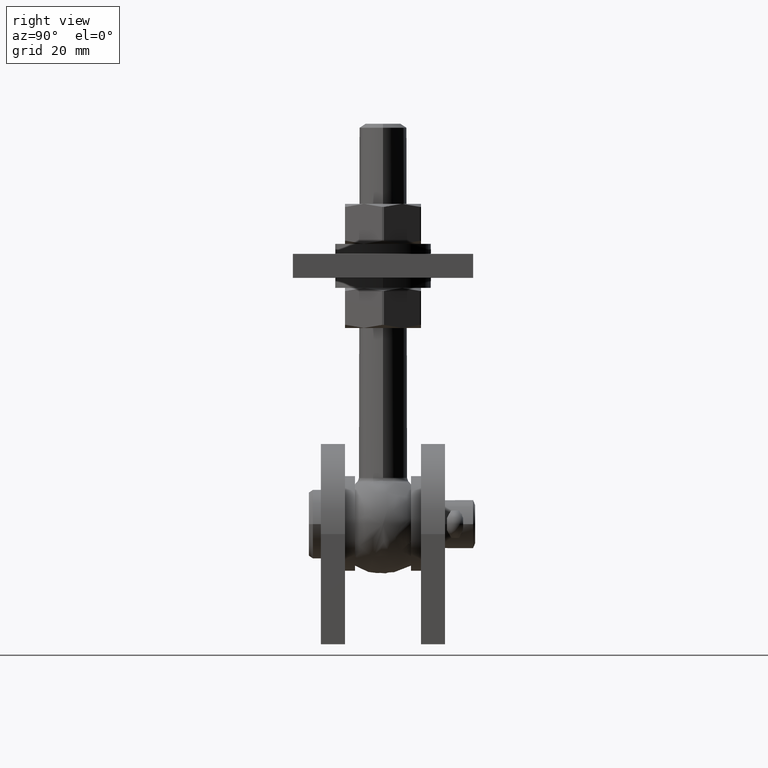
[diagram: clean part render]
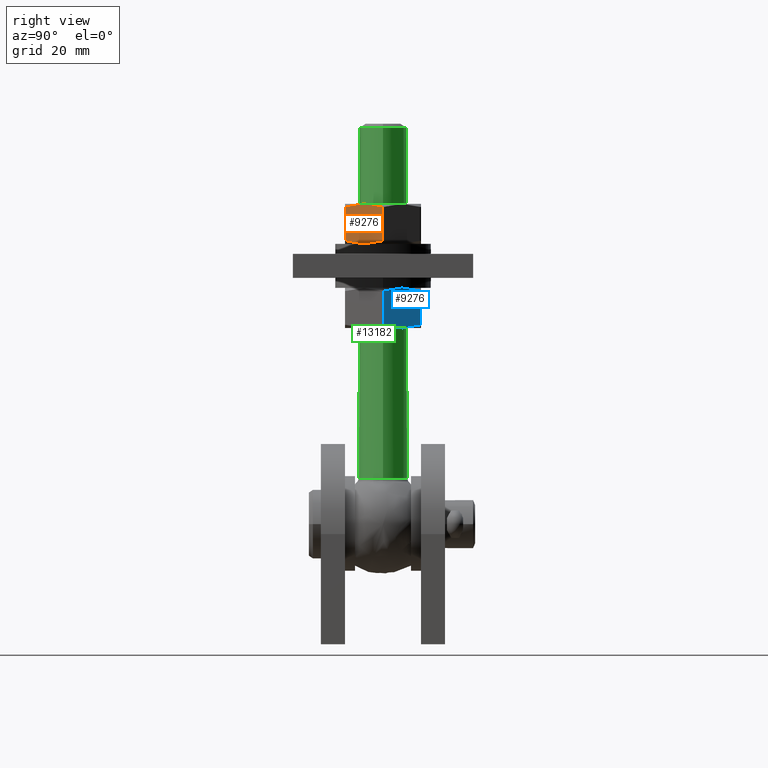
[diagram: same view with three faces highlighted in distinct colors, each labeled with its STEP entity id]
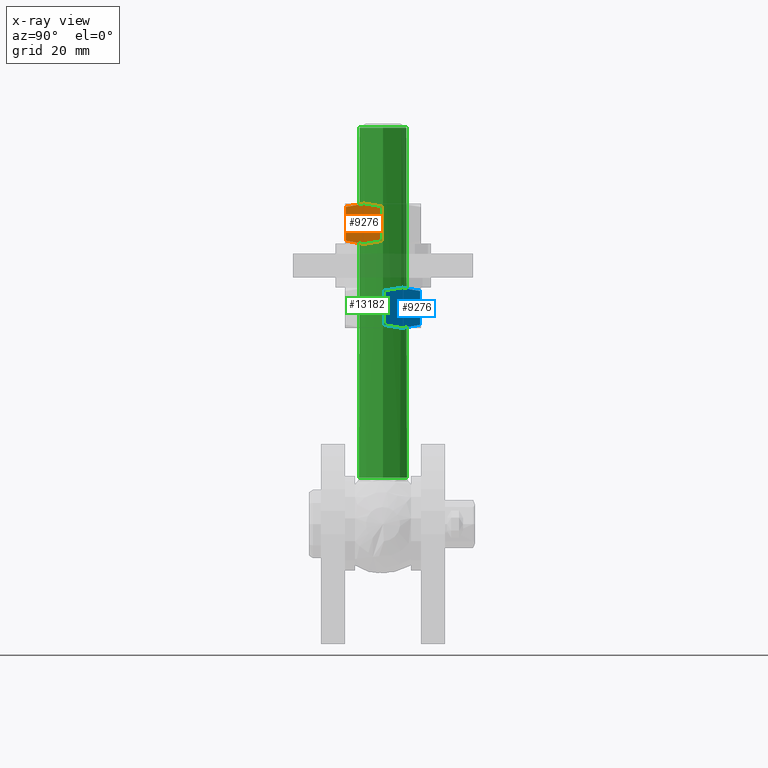
[diagram: x-ray of the same camera — body ghosted, the three highlighted faces saturated]
A machine part, right view with three faces highlighted in distinct colors.
The next image is the same camera in x-ray (body ghosted, the three faces saturated) — at least one of them is partly hidden behind the body in this view.
Their STEP definitions:

[orange] entity #9276 — the highlighted planar face has unit normal (-0.866, 0.5, 0).
#171 = LINE ( 'NONE', #13442, #1032 ) ;
#275 = CARTESIAN_POINT ( 'NONE',  ( 6.481161992788949888, 4.661040693212938457, 7.774298136405194626 ) ) ;
#363 = VERTEX_POINT ( 'NONE', #1885 ) ;
#726 = CARTESIAN_POINT ( 'NONE',  ( 7.785049015618858093, -5.000000000000003553, 5.515899565534070348 ) ) ;
#871 = CARTESIAN_POINT ( 'NONE',  ( 8.447481077618254730, -5.000000000000003553, 4.368533577588496364 ) ) ;
#1032 = VECTOR ( 'NONE', #14906, 1000.000000000000000 ) ;
#1586 = CARTESIAN_POINT ( 'NONE',  ( 9.106430400612977039, 4.927662757294314133, 3.227199870548520977 ) ) ;
#1601 = CARTESIAN_POINT ( 'NONE',  ( 7.785726958241930618, 4.982053147081705546, 5.514725334466293205 ) ) ;
#1695 = CARTESIAN_POINT ( 'NONE',  ( 10.40005022359210329, 4.468805358379075443, 0.9865846114704180936 ) ) ;
#1827 = ORIENTED_EDGE ( 'NONE', *, *, #15463, .T. ) ;
#1885 = CARTESIAN_POINT ( 'NONE',  ( 5.629165124598359604, -4.233161112797494852, 9.250000000000859757 ) ) ;
#2905 = CARTESIAN_POINT ( 'NONE',  ( 8.227241335952166779, 5.000000000000000000, 4.749999999999996447 ) ) ;
#3017 = CARTESIAN_POINT ( 'NONE',  ( 10.82531754730598195, 4.233161112797495740, 0.2499999999991363853 ) ) ;
#3512 = CARTESIAN_POINT ( 'NONE',  ( 9.324286606578485959, -4.860768812073038347, 2.849861853072073181 ) ) ;
#3587 = ORIENTED_EDGE ( 'NONE', *, *, #5479, .T. ) ;
#4222 = B_SPLINE_CURVE_WITH_KNOTS ( 'NONE', 3,
 ( #3017, #1695, #12416, #1586, #13758, #2905 ),
 .UNSPECIFIED., .F., .F.,
 ( 4, 2, 4 ),
 ( 0.0002975922718325320761, 0.002923788827799092375, 0.005549985383765653271 ),
 .UNSPECIFIED. ) ;
#4432 = CARTESIAN_POINT ( 'NONE',  ( 10.82531754730598195, 4.233161112797495740, 0.2499999999991363853 ) ) ;
#4542 = DIRECTION ( 'NONE',  ( 0.000000000000000000, -1.000000000000000000, 0.000000000000000000 ) ) ;
#4618 = VERTEX_POINT ( 'NONE', #14515 ) ;
#4811 = CARTESIAN_POINT ( 'NONE',  ( 6.482771478358124284, -4.661682687220361387, 7.771510425625338669 ) ) ;
#5063 = CARTESIAN_POINT ( 'NONE',  ( 8.227241335952166779, -5.000000000000000000, 4.749999999999996447 ) ) ;
#5435 = DIRECTION ( 'NONE',  ( -0.4999999999999997224, 0.000000000000000000, 0.8660254037844388186 ) ) ;
#5479 = EDGE_CURVE ( 'NONE', #4618, #363, #15150, .T. ) ;
#5624 = CARTESIAN_POINT ( 'NONE',  ( 8.007001594286089485, 5.000000000000003553, 5.131466422411501860 ) ) ;
#6086 = EDGE_CURVE ( 'NONE', #13796, #12435, #4222, .T. ) ;
#6197 = CARTESIAN_POINT ( 'NONE',  ( 10.40106991011711024, -4.468240341392039738, 0.9848184626013096743 ) ) ;
#6375 = CARTESIAN_POINT ( 'NONE',  ( 8.227241335952166779, 5.000000000000000000, 4.749999999999996447 ) ) ;
#6963 = CARTESIAN_POINT ( 'NONE',  ( 6.053412761787232199, 4.468240341392040627, 8.515181537398685663 ) ) ;
#7193 = CARTESIAN_POINT ( 'NONE',  ( 5.629165124598857872, 5.000000000000000000, 9.249999999999998224 ) ) ;
#7415 = ORIENTED_EDGE ( 'NONE', *, *, #16831, .T. ) ;
#7927 = B_SPLINE_CURVE_WITH_KNOTS ( 'NONE', 3,
 ( #5063, #871, #9054, #15661, #3512, #10411, #6197, #14251 ),
 .UNSPECIFIED., .F., .F.,
 ( 4, 2, 2, 4 ),
 ( 0.005549985383765651537, 0.006857997360578056353, 0.008166009337390461170, 0.01078203329101527080 ),
 .UNSPECIFIED. ) ;
#7996 = DIRECTION ( 'NONE',  ( -0.8660254037844388186, 0.000000000000000000, -0.4999999999999997224 ) ) ;
#8114 = PLANE ( 'NONE',  #13151 ) ;
#8610 = EDGE_CURVE ( 'NONE', #16296, #12856, #7927, .T. ) ;
#8776 = FACE_OUTER_BOUND ( 'NONE', #11315, .T. ) ;
#9054 = CARTESIAN_POINT ( 'NONE',  ( 8.668755713662411821, -4.982053147081705546, 3.985274665533705907 ) ) ;
#9276 = ADVANCED_FACE ( 'NONE', ( #8776 ), #8114, .F. ) ;
#9341 = CARTESIAN_POINT ( 'NONE',  ( 10.82531754730548457, -4.233161112797770187, 0.2499999999999979461 ) ) ;
#10291 = CARTESIAN_POINT ( 'NONE',  ( 8.227241335952166779, -5.000000000000000000, 4.749999999999996447 ) ) ;
#10397 = CARTESIAN_POINT ( 'NONE',  ( 7.348052271291366289, -4.927662757294313245, 6.272800129451474582 ) ) ;
#10411 = CARTESIAN_POINT ( 'NONE',  ( 9.973320679115390774, -4.661040693212939345, 1.725701863594800933 ) ) ;
#10538 = VECTOR ( 'NONE', #4542, 1000.000000000000000 ) ;
#10960 = CARTESIAN_POINT ( 'NONE',  ( 8.227241335952166779, 5.000000000000000000, 4.749999999999996447 ) ) ;
#11308 = EDGE_CURVE ( 'NONE', #12856, #13796, #171, .T. ) ;
#11315 = EDGE_LOOP ( 'NONE', ( #14814, #13649, #12660, #1827, #3587, #7415 ) ) ;
#11650 = CARTESIAN_POINT ( 'NONE',  ( 8.227241335952166779, -5.000000000000000000, 4.749999999999996447 ) ) ;
#12416 = CARTESIAN_POINT ( 'NONE',  ( 9.971711193546221708, 4.661682687220359611, 1.728489574374658666 ) ) ;
#12435 = VERTEX_POINT ( 'NONE', #6375 ) ;
#12441 = CARTESIAN_POINT ( 'NONE',  ( 7.130196065325856480, 4.860768812073038347, 6.650138146927925042 ) ) ;
#12660 = ORIENTED_EDGE ( 'NONE', *, *, #6086, .T. ) ;
#12856 = VERTEX_POINT ( 'NONE', #9341 ) ;
#13151 = AXIS2_PLACEMENT_3D ( 'NONE', #13485, #7996, #5435 ) ;
#13442 = CARTESIAN_POINT ( 'NONE',  ( 10.82531754730548457, 5.000000000000000000, 0.2499999999999985012 ) ) ;
#13485 = CARTESIAN_POINT ( 'NONE',  ( 5.484827557301451328, 5.000000000000000000, 9.499999999999998224 ) ) ;
#13649 = ORIENTED_EDGE ( 'NONE', *, *, #11308, .T. ) ;
#13758 = CARTESIAN_POINT ( 'NONE',  ( 8.669433656285480794, 5.000000000000003553, 3.984100434465927432 ) ) ;
#13796 = VERTEX_POINT ( 'NONE', #4432 ) ;
#14251 = CARTESIAN_POINT ( 'NONE',  ( 10.82531754730548457, -4.233161112797770187, 0.2499999999999979461 ) ) ;
#14347 = CARTESIAN_POINT ( 'NONE',  ( 6.054432448312240034, -4.468805358379075443, 8.513415388529578465 ) ) ;
#14503 = B_SPLINE_CURVE_WITH_KNOTS ( 'NONE', 3,
 ( #10960, #5624, #1601, #15019, #12441, #275, #6963, #16388 ),
 .UNSPECIFIED., .F., .F.,
 ( 4, 2, 2, 4 ),
 ( 0.005549985383765653271, 0.006857997360578056353, 0.008166009337390461170, 0.01078203329101526733 ),
 .UNSPECIFIED. ) ;
#14515 = CARTESIAN_POINT ( 'NONE',  ( 5.629165124598859649, 4.233161112797771075, 9.249999999999996447 ) ) ;
#14814 = ORIENTED_EDGE ( 'NONE', *, *, #8610, .T. ) ;
#14906 = DIRECTION ( 'NONE',  ( -0.000000000000000000, 1.000000000000000000, -0.000000000000000000 ) ) ;
#15019 = CARTESIAN_POINT ( 'NONE',  ( 7.347778050468212641, 4.912405536657724170, 6.273275093849668416 ) ) ;
#15150 = LINE ( 'NONE', #7193, #10538 ) ;
#15463 = EDGE_CURVE ( 'NONE', #12435, #4618, #14503, .T. ) ;
#15661 = CARTESIAN_POINT ( 'NONE',  ( 9.106704621436129798, -4.912405536657724170, 3.226724906150327143 ) ) ;
#16114 = B_SPLINE_CURVE_WITH_KNOTS ( 'NONE', 3,
 ( #17115, #14347, #4811, #10397, #726, #11650 ),
 .UNSPECIFIED., .F., .F.,
 ( 4, 2, 4 ),
 ( 0.0002975922718325331603, 0.002923788827799092375, 0.005549985383765651537 ),
 .UNSPECIFIED. ) ;
#16296 = VERTEX_POINT ( 'NONE', #10291 ) ;
#16388 = CARTESIAN_POINT ( 'NONE',  ( 5.629165124598859649, 4.233161112797771075, 9.249999999999996447 ) ) ;
#16831 = EDGE_CURVE ( 'NONE', #363, #16296, #16114, .T. ) ;
#17115 = CARTESIAN_POINT ( 'NONE',  ( 5.629165124598359604, -4.233161112797494852, 9.250000000000859757 ) ) ;

[blue] entity #9276 — the highlighted planar face has unit normal (-0.866, -0.5, 0).
#171 = LINE ( 'NONE', #13442, #1032 ) ;
#275 = CARTESIAN_POINT ( 'NONE',  ( 6.481161992788949888, 4.661040693212938457, 7.774298136405194626 ) ) ;
#363 = VERTEX_POINT ( 'NONE', #1885 ) ;
#726 = CARTESIAN_POINT ( 'NONE',  ( 7.785049015618858093, -5.000000000000003553, 5.515899565534070348 ) ) ;
#871 = CARTESIAN_POINT ( 'NONE',  ( 8.447481077618254730, -5.000000000000003553, 4.368533577588496364 ) ) ;
#1032 = VECTOR ( 'NONE', #14906, 1000.000000000000000 ) ;
#1586 = CARTESIAN_POINT ( 'NONE',  ( 9.106430400612977039, 4.927662757294314133, 3.227199870548520977 ) ) ;
#1601 = CARTESIAN_POINT ( 'NONE',  ( 7.785726958241930618, 4.982053147081705546, 5.514725334466293205 ) ) ;
#1695 = CARTESIAN_POINT ( 'NONE',  ( 10.40005022359210329, 4.468805358379075443, 0.9865846114704180936 ) ) ;
#1827 = ORIENTED_EDGE ( 'NONE', *, *, #15463, .T. ) ;
#1885 = CARTESIAN_POINT ( 'NONE',  ( 5.629165124598359604, -4.233161112797494852, 9.250000000000859757 ) ) ;
#2905 = CARTESIAN_POINT ( 'NONE',  ( 8.227241335952166779, 5.000000000000000000, 4.749999999999996447 ) ) ;
#3017 = CARTESIAN_POINT ( 'NONE',  ( 10.82531754730598195, 4.233161112797495740, 0.2499999999991363853 ) ) ;
#3512 = CARTESIAN_POINT ( 'NONE',  ( 9.324286606578485959, -4.860768812073038347, 2.849861853072073181 ) ) ;
#3587 = ORIENTED_EDGE ( 'NONE', *, *, #5479, .T. ) ;
#4222 = B_SPLINE_CURVE_WITH_KNOTS ( 'NONE', 3,
 ( #3017, #1695, #12416, #1586, #13758, #2905 ),
 .UNSPECIFIED., .F., .F.,
 ( 4, 2, 4 ),
 ( 0.0002975922718325320761, 0.002923788827799092375, 0.005549985383765653271 ),
 .UNSPECIFIED. ) ;
#4432 = CARTESIAN_POINT ( 'NONE',  ( 10.82531754730598195, 4.233161112797495740, 0.2499999999991363853 ) ) ;
#4542 = DIRECTION ( 'NONE',  ( 0.000000000000000000, -1.000000000000000000, 0.000000000000000000 ) ) ;
#4618 = VERTEX_POINT ( 'NONE', #14515 ) ;
#4811 = CARTESIAN_POINT ( 'NONE',  ( 6.482771478358124284, -4.661682687220361387, 7.771510425625338669 ) ) ;
#5063 = CARTESIAN_POINT ( 'NONE',  ( 8.227241335952166779, -5.000000000000000000, 4.749999999999996447 ) ) ;
#5435 = DIRECTION ( 'NONE',  ( -0.4999999999999997224, 0.000000000000000000, 0.8660254037844388186 ) ) ;
#5479 = EDGE_CURVE ( 'NONE', #4618, #363, #15150, .T. ) ;
#5624 = CARTESIAN_POINT ( 'NONE',  ( 8.007001594286089485, 5.000000000000003553, 5.131466422411501860 ) ) ;
#6086 = EDGE_CURVE ( 'NONE', #13796, #12435, #4222, .T. ) ;
#6197 = CARTESIAN_POINT ( 'NONE',  ( 10.40106991011711024, -4.468240341392039738, 0.9848184626013096743 ) ) ;
#6375 = CARTESIAN_POINT ( 'NONE',  ( 8.227241335952166779, 5.000000000000000000, 4.749999999999996447 ) ) ;
#6963 = CARTESIAN_POINT ( 'NONE',  ( 6.053412761787232199, 4.468240341392040627, 8.515181537398685663 ) ) ;
#7193 = CARTESIAN_POINT ( 'NONE',  ( 5.629165124598857872, 5.000000000000000000, 9.249999999999998224 ) ) ;
#7415 = ORIENTED_EDGE ( 'NONE', *, *, #16831, .T. ) ;
#7927 = B_SPLINE_CURVE_WITH_KNOTS ( 'NONE', 3,
 ( #5063, #871, #9054, #15661, #3512, #10411, #6197, #14251 ),
 .UNSPECIFIED., .F., .F.,
 ( 4, 2, 2, 4 ),
 ( 0.005549985383765651537, 0.006857997360578056353, 0.008166009337390461170, 0.01078203329101527080 ),
 .UNSPECIFIED. ) ;
#7996 = DIRECTION ( 'NONE',  ( -0.8660254037844388186, 0.000000000000000000, -0.4999999999999997224 ) ) ;
#8114 = PLANE ( 'NONE',  #13151 ) ;
#8610 = EDGE_CURVE ( 'NONE', #16296, #12856, #7927, .T. ) ;
#8776 = FACE_OUTER_BOUND ( 'NONE', #11315, .T. ) ;
#9054 = CARTESIAN_POINT ( 'NONE',  ( 8.668755713662411821, -4.982053147081705546, 3.985274665533705907 ) ) ;
#9276 = ADVANCED_FACE ( 'NONE', ( #8776 ), #8114, .F. ) ;
#9341 = CARTESIAN_POINT ( 'NONE',  ( 10.82531754730548457, -4.233161112797770187, 0.2499999999999979461 ) ) ;
#10291 = CARTESIAN_POINT ( 'NONE',  ( 8.227241335952166779, -5.000000000000000000, 4.749999999999996447 ) ) ;
#10397 = CARTESIAN_POINT ( 'NONE',  ( 7.348052271291366289, -4.927662757294313245, 6.272800129451474582 ) ) ;
#10411 = CARTESIAN_POINT ( 'NONE',  ( 9.973320679115390774, -4.661040693212939345, 1.725701863594800933 ) ) ;
#10538 = VECTOR ( 'NONE', #4542, 1000.000000000000000 ) ;
#10960 = CARTESIAN_POINT ( 'NONE',  ( 8.227241335952166779, 5.000000000000000000, 4.749999999999996447 ) ) ;
#11308 = EDGE_CURVE ( 'NONE', #12856, #13796, #171, .T. ) ;
#11315 = EDGE_LOOP ( 'NONE', ( #14814, #13649, #12660, #1827, #3587, #7415 ) ) ;
#11650 = CARTESIAN_POINT ( 'NONE',  ( 8.227241335952166779, -5.000000000000000000, 4.749999999999996447 ) ) ;
#12416 = CARTESIAN_POINT ( 'NONE',  ( 9.971711193546221708, 4.661682687220359611, 1.728489574374658666 ) ) ;
#12435 = VERTEX_POINT ( 'NONE', #6375 ) ;
#12441 = CARTESIAN_POINT ( 'NONE',  ( 7.130196065325856480, 4.860768812073038347, 6.650138146927925042 ) ) ;
#12660 = ORIENTED_EDGE ( 'NONE', *, *, #6086, .T. ) ;
#12856 = VERTEX_POINT ( 'NONE', #9341 ) ;
#13151 = AXIS2_PLACEMENT_3D ( 'NONE', #13485, #7996, #5435 ) ;
#13442 = CARTESIAN_POINT ( 'NONE',  ( 10.82531754730548457, 5.000000000000000000, 0.2499999999999985012 ) ) ;
#13485 = CARTESIAN_POINT ( 'NONE',  ( 5.484827557301451328, 5.000000000000000000, 9.499999999999998224 ) ) ;
#13649 = ORIENTED_EDGE ( 'NONE', *, *, #11308, .T. ) ;
#13758 = CARTESIAN_POINT ( 'NONE',  ( 8.669433656285480794, 5.000000000000003553, 3.984100434465927432 ) ) ;
#13796 = VERTEX_POINT ( 'NONE', #4432 ) ;
#14251 = CARTESIAN_POINT ( 'NONE',  ( 10.82531754730548457, -4.233161112797770187, 0.2499999999999979461 ) ) ;
#14347 = CARTESIAN_POINT ( 'NONE',  ( 6.054432448312240034, -4.468805358379075443, 8.513415388529578465 ) ) ;
#14503 = B_SPLINE_CURVE_WITH_KNOTS ( 'NONE', 3,
 ( #10960, #5624, #1601, #15019, #12441, #275, #6963, #16388 ),
 .UNSPECIFIED., .F., .F.,
 ( 4, 2, 2, 4 ),
 ( 0.005549985383765653271, 0.006857997360578056353, 0.008166009337390461170, 0.01078203329101526733 ),
 .UNSPECIFIED. ) ;
#14515 = CARTESIAN_POINT ( 'NONE',  ( 5.629165124598859649, 4.233161112797771075, 9.249999999999996447 ) ) ;
#14814 = ORIENTED_EDGE ( 'NONE', *, *, #8610, .T. ) ;
#14906 = DIRECTION ( 'NONE',  ( -0.000000000000000000, 1.000000000000000000, -0.000000000000000000 ) ) ;
#15019 = CARTESIAN_POINT ( 'NONE',  ( 7.347778050468212641, 4.912405536657724170, 6.273275093849668416 ) ) ;
#15150 = LINE ( 'NONE', #7193, #10538 ) ;
#15463 = EDGE_CURVE ( 'NONE', #12435, #4618, #14503, .T. ) ;
#15661 = CARTESIAN_POINT ( 'NONE',  ( 9.106704621436129798, -4.912405536657724170, 3.226724906150327143 ) ) ;
#16114 = B_SPLINE_CURVE_WITH_KNOTS ( 'NONE', 3,
 ( #17115, #14347, #4811, #10397, #726, #11650 ),
 .UNSPECIFIED., .F., .F.,
 ( 4, 2, 4 ),
 ( 0.0002975922718325331603, 0.002923788827799092375, 0.005549985383765651537 ),
 .UNSPECIFIED. ) ;
#16296 = VERTEX_POINT ( 'NONE', #10291 ) ;
#16388 = CARTESIAN_POINT ( 'NONE',  ( 5.629165124598859649, 4.233161112797771075, 9.249999999999996447 ) ) ;
#16831 = EDGE_CURVE ( 'NONE', #363, #16296, #16114, .T. ) ;
#17115 = CARTESIAN_POINT ( 'NONE',  ( 5.629165124598359604, -4.233161112797494852, 9.250000000000859757 ) ) ;

[green] entity #13182 — the highlighted cylindrical surface (bore or boss wall) has radius 6 mm, axis along (0, 0, 1).
#1696 = CARTESIAN_POINT ( 'NONE',  ( 0.000000000000000000, 0.000000000000000000, 11.54339638061519580 ) ) ;
#2058 = FACE_OUTER_BOUND ( 'NONE', #11674, .T. ) ;
#3902 = VERTEX_POINT ( 'NONE', #12087 ) ;
#4179 = DIRECTION ( 'NONE',  ( 0.000000000000000000, 0.000000000000000000, -1.000000000000000000 ) ) ;
#4227 = CYLINDRICAL_SURFACE ( 'NONE', #9318, 6.000000000000000888 ) ;
#4316 = EDGE_CURVE ( 'NONE', #10421, #10421, #9058, .T. ) ;
#5995 = DIRECTION ( 'NONE',  ( 1.000000000000000000, 0.000000000000000000, 0.000000000000000000 ) ) ;
#6674 = CARTESIAN_POINT ( 'NONE',  ( -6.000000000000000888, 0.000000000000000000, 11.54339638061519580 ) ) ;
#6955 = CARTESIAN_POINT ( 'NONE',  ( 0.000000000000000000, 0.000000000000000000, 99.00000000000000000 ) ) ;
#7195 = ORIENTED_EDGE ( 'NONE', *, *, #9135, .T. ) ;
#7516 = CIRCLE ( 'NONE', #10536, 6.000000000000000888 ) ;
#8230 = DIRECTION ( 'NONE',  ( 1.000000000000000000, 0.000000000000000000, 0.000000000000000000 ) ) ;
#8627 = DIRECTION ( 'NONE',  ( -0.000000000000000000, -0.000000000000000000, 1.000000000000000000 ) ) ;
#8796 = CARTESIAN_POINT ( 'NONE',  ( 0.000000000000000000, 0.000000000000000000, -12.50199999999999889 ) ) ;
#9058 = CIRCLE ( 'NONE', #15127, 6.000000000000000888 ) ;
#9135 = EDGE_CURVE ( 'NONE', #3902, #3902, #7516, .T. ) ;
#9318 = AXIS2_PLACEMENT_3D ( 'NONE', #8796, #12764, #5995 ) ;
#10421 = VERTEX_POINT ( 'NONE', #6674 ) ;
#10536 = AXIS2_PLACEMENT_3D ( 'NONE', #6955, #4179, #8230 ) ;
#11674 = EDGE_LOOP ( 'NONE', ( #16055 ) ) ;
#12087 = CARTESIAN_POINT ( 'NONE',  ( 6.000000000000000888, 0.000000000000000000, 99.00000000000000000 ) ) ;
#12764 = DIRECTION ( 'NONE',  ( 0.000000000000000000, 0.000000000000000000, 1.000000000000000000 ) ) ;
#13182 = ADVANCED_FACE ( 'NONE', ( #17084, #2058 ), #4227, .T. ) ;
#13823 = DIRECTION ( 'NONE',  ( -1.000000000000000000, 0.000000000000000000, 0.000000000000000000 ) ) ;
#14723 = EDGE_LOOP ( 'NONE', ( #7195 ) ) ;
#15127 = AXIS2_PLACEMENT_3D ( 'NONE', #1696, #8627, #13823 ) ;
#16055 = ORIENTED_EDGE ( 'NONE', *, *, #4316, .T. ) ;
#17084 = FACE_OUTER_BOUND ( 'NONE', #14723, .T. ) ;